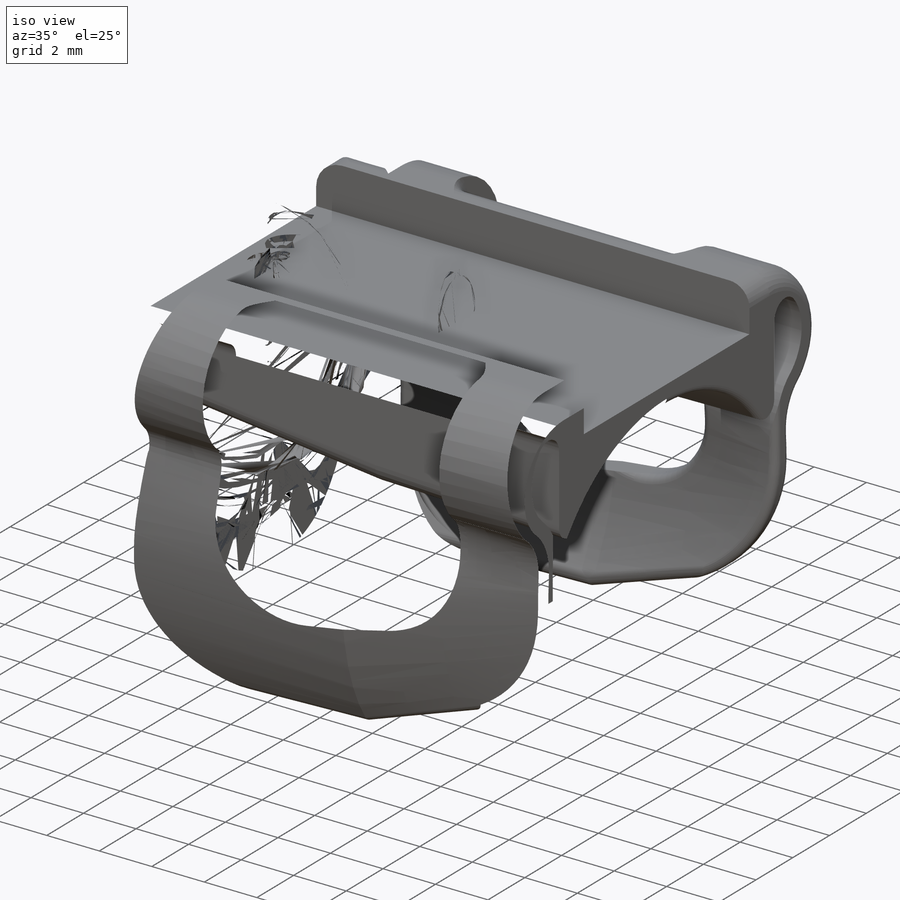
[diagram: iso view]
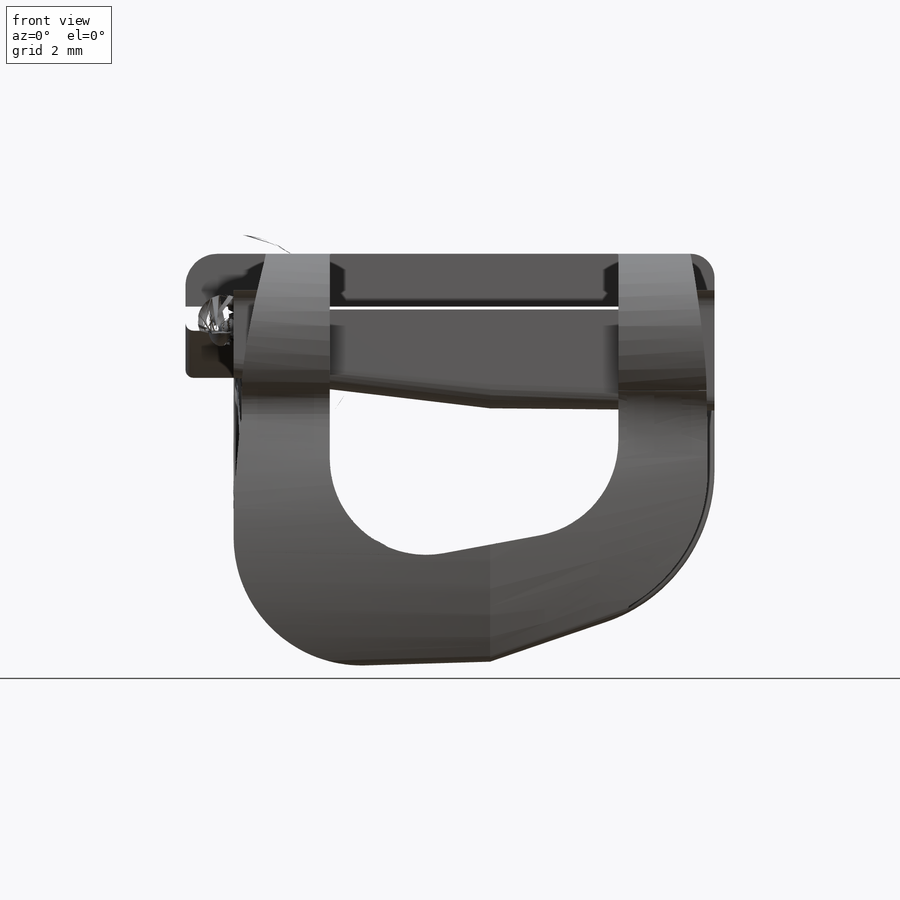
[diagram: front view]
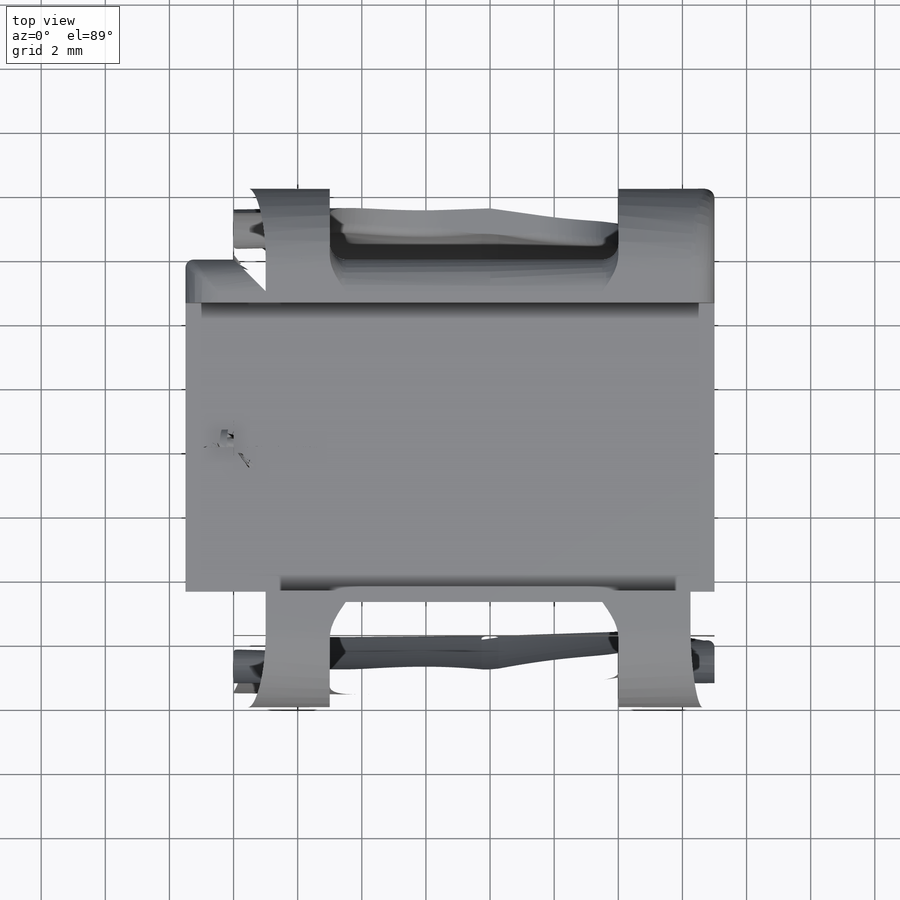
[diagram: top view]
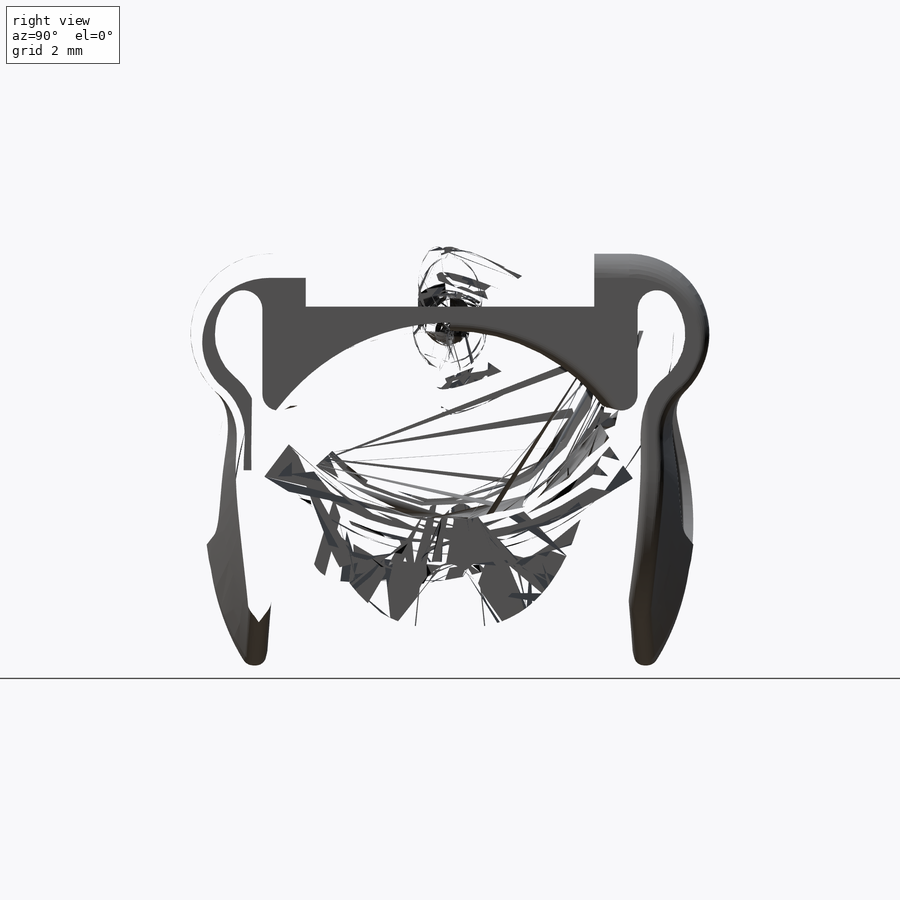
[diagram: right view]
SOLIDWORKS PART (.sldprt)
format: sldprt  version: not decoded by parser v0  size: 1,684,480 bytes
history: native  units: mm
features: sketch x9, fillet x7, plane x2, cut_extrude x2, material x1, extrude x1, mirror x1 (+13 scaffold rows collapsed)
feature tree (36):
  scaffold x13  (default folders/planes/origin — collapsed)
  material  "ABS"
  sketch  "Sketch2"  dims[c1.D3=9.5mm c1.D7=~5.264952mm c1.D12=~2.867997mm c1.D13=2.5mm c1.D14=1.0mm c1.D5=1.25mm c1.D16=0.6mm c1.D1=6.0mm c1.D2=2.0mm c1.D4=8.0mm c2.D5=3.0mm c2.D6=5.8mm c2.D7=~7.141428mm c3.D5=6.0mm c3.D7=6.75mm c3.D8=0.75mm c3.D4=10.0mm c3.D9=0.75mm c3.D10=1.65mm c3.D11=4.5mm c3.D12=0.75mm c3.D14=1.0mm c3.D15=1.35mm]
  plane  "Plane1"  Offset=8mm
  sketch  "Sketch3"  dims[c1.D1=6.0mm c1.D8=1.6mm c1.D3=0.75mm c1.D2=12.0mm c2.D3=6.0mm c2.D4=0.75mm c2.D5=9.75mm c2.D6=5.75mm c2.D7=4.75mm c2.D8=~2.33428mm]
  plane  "Plane2"  Offset=15mm
  sketch  "Sketch4"  dims[c1.D1=6.5mm c1.D8=0.5mm c1.D2=7.5mm c1.D3=0.75mm c1.D4=5.75mm c1.D5=5.5mm c1.D6=2.0mm c1.D7=12.0mm c2.D8=6.0mm c2.D4=5.0mm c3.D8=~6.069192mm]
  sketch  "3DSketch3"
  sketch  "Loft6"
  sketch  "Sketch3<6>"
  sketch  "Sketch8"
  extrude  "Boss-Extrude1"  Depth=1.5mm
  fillet  "Fillet1"  Radius=3mm
  sketch  "Sketch5"  dims[D1=5.0mm D2=4.0mm]
  cut_extrude  "Cut-Extrude1"  Depth=10mm
  fillet  "Fillet5"  Radius=0.25mm
  fillet  "Fillet6"  Radius=0.25mm
  sketch  "Sketch6"  dims[c1.D3=3.0mm c1.D1=3.0mm c1.D2=3.0mm c1.D4=3.0mm c2.D4=~10.516629deg c3.D4=3.5mm]
  cut_extrude  "Cut-Extrude2"  Depth=10mm
  fillet  "Fillet7"  Radius=0.3mm
  fillet  "Fillet8"  Radius=1mm
  fillet  "Fillet9"  Radius=0.5mm
  fillet  "Fillet10"  Radius=1mm VarFillet2=0deg
  mirror  "Mirror5"  VarFillet4=0deg VarFillet8=0deg
decode coverage: 16 of 20 modeling features carry decoded parameters
note: ~ marks probable driven/reference dimensions
note: suppression state not decoded; provenance and decode notes live in map.json
